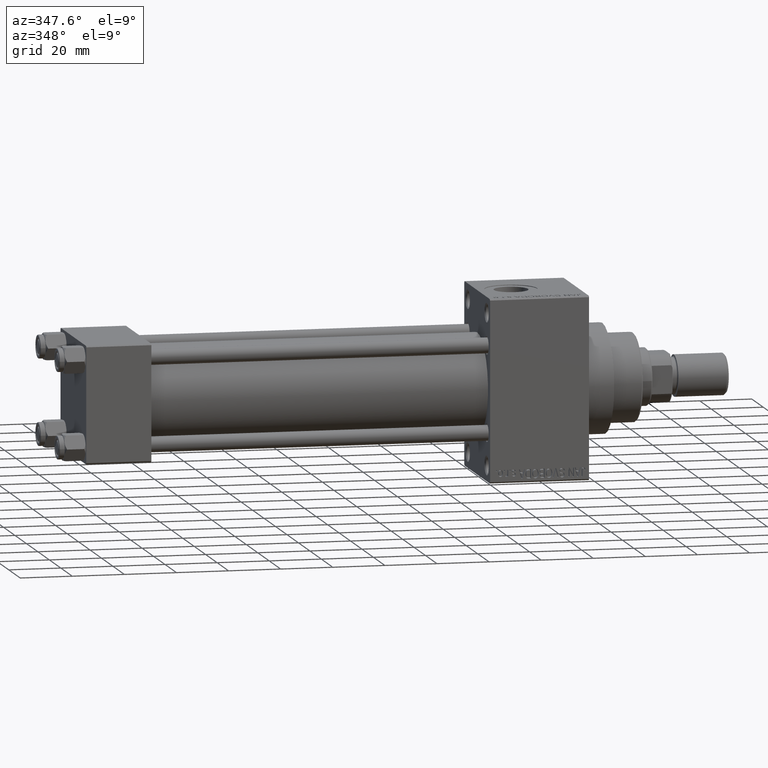
[diagram: clean part render]
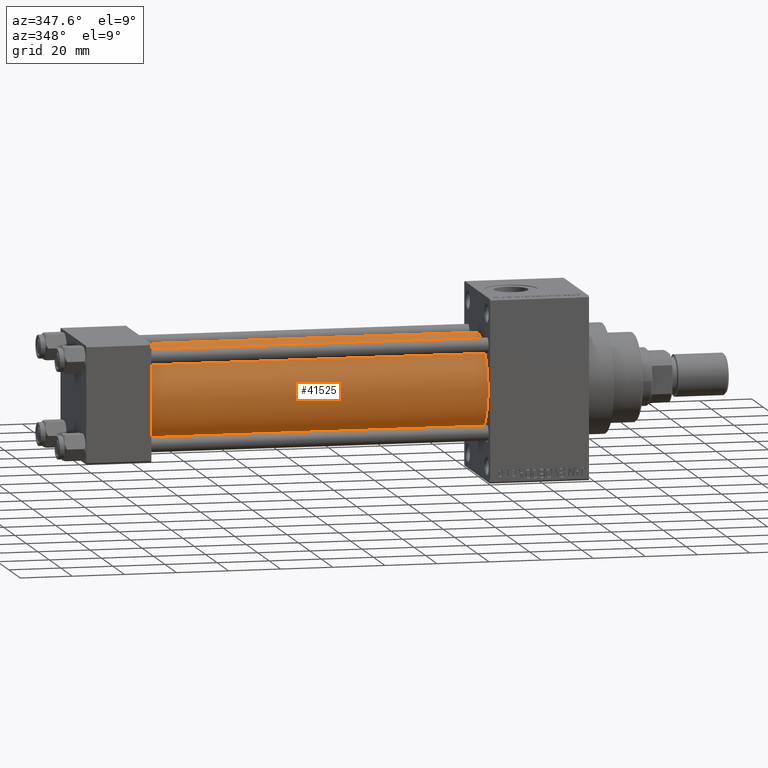
[diagram: same view with one face highlighted and labeled with its STEP entity id]
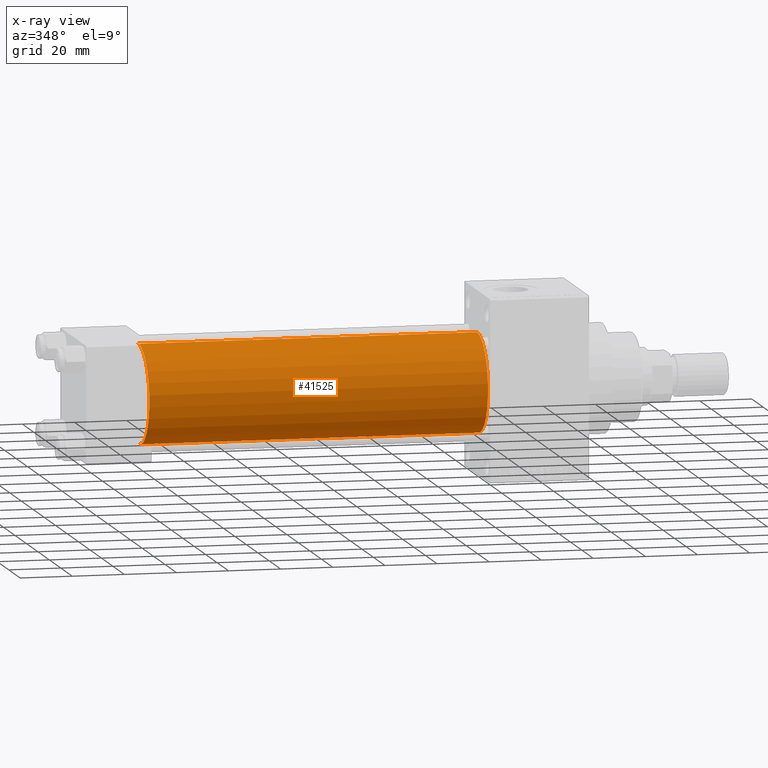
[diagram: x-ray of the same camera — body ghosted, the highlighted face saturated]
A machine part, auxiliary view. The second image highlights one B-rep face of the part: STEP entity #41525.
The next image is the same camera in x-ray: the body ghosted, the highlighted face saturated — about 0% of this face is hidden behind the body in this view.
In plain terms, the highlighted cylindrical surface (partial cylindrical patch) has radius 19 mm, axis along (-1, -0, -0).
Its self-contained STEP definition (entity closure, byte-faithful):
#107 = EDGE_CURVE ( 'NONE', #14056, #7375, #37675, .T. ) ;
#659 = AXIS2_PLACEMENT_3D ( 'NONE', #32966, #33209, #18994 ) ;
#2007 = CARTESIAN_POINT ( 'NONE',  ( 155.0000000000000000, -2.602085213965210642E-15, 0.000000000000000000 ) ) ;
#2282 = CARTESIAN_POINT ( 'NONE',  ( 24.99999999999999289, -2.752562955852396712E-16, -19.00000000000000000 ) ) ;
#2962 = ORIENTED_EDGE ( 'NONE', *, *, #46465, .T. ) ;
#2998 = DIRECTION ( 'NONE',  ( -1.000000000000000000, -0.000000000000000000, -0.000000000000000000 ) ) ;
#5917 = AXIS2_PLACEMENT_3D ( 'NONE', #39744, #31564, #42976 ) ;
#6208 = DIRECTION ( 'NONE',  ( 0.000000000000000000, 0.000000000000000000, -1.000000000000000000 ) ) ;
#7375 = VERTEX_POINT ( 'NONE', #20697 ) ;
#7678 = ORIENTED_EDGE ( 'NONE', *, *, #42769, .F. ) ;
#9184 = DIRECTION ( 'NONE',  ( 1.000000000000000000, 0.000000000000000000, 0.000000000000000000 ) ) ;
#10533 = VERTEX_POINT ( 'NONE', #32034 ) ;
#11881 = VECTOR ( 'NONE', #37478, 1000.000000000000000 ) ;
#13877 = CYLINDRICAL_SURFACE ( 'NONE', #659, 19.00000000000000000 ) ;
#14056 = VERTEX_POINT ( 'NONE', #36962 ) ;
#16914 = ORIENTED_EDGE ( 'NONE', *, *, #107, .F. ) ;
#18994 = DIRECTION ( 'NONE',  ( 0.000000000000000000, 0.000000000000000000, 1.000000000000000000 ) ) ;
#20697 = CARTESIAN_POINT ( 'NONE',  ( 155.0000000000000000, -2.752562955852396712E-16, -19.00000000000000000 ) ) ;
#22350 = CARTESIAN_POINT ( 'NONE',  ( 155.0000000000000000, -2.602085213965210642E-15, 19.00000000000000000 ) ) ;
#23713 = EDGE_LOOP ( 'NONE', ( #7678, #16914, #2962, #44736 ) ) ;
#24901 = EDGE_CURVE ( 'NONE', #10533, #39570, #35990, .T. ) ;
#29522 = LINE ( 'NONE', #36469, #48990 ) ;
#31564 = DIRECTION ( 'NONE',  ( 1.000000000000000000, -0.000000000000000000, 0.000000000000000000 ) ) ;
#32034 = CARTESIAN_POINT ( 'NONE',  ( 24.99999999999999289, -2.602085213965210642E-15, 19.00000000000000000 ) ) ;
#32723 = FACE_OUTER_BOUND ( 'NONE', #23713, .T. ) ;
#32966 = CARTESIAN_POINT ( 'NONE',  ( 155.0000000000000000, -2.602085213965210642E-15, 0.000000000000000000 ) ) ;
#33209 = DIRECTION ( 'NONE',  ( -1.000000000000000000, -0.000000000000000000, -0.000000000000000000 ) ) ;
#34523 = AXIS2_PLACEMENT_3D ( 'NONE', #2007, #9184, #6208 ) ;
#35990 = CIRCLE ( 'NONE', #5917, 19.00000000000000000 ) ;
#36469 = CARTESIAN_POINT ( 'NONE',  ( 155.0000000000000000, -2.752562955852396712E-16, -19.00000000000000000 ) ) ;
#36962 = CARTESIAN_POINT ( 'NONE',  ( 155.0000000000000000, -2.602085213965210642E-15, 19.00000000000000000 ) ) ;
#37478 = DIRECTION ( 'NONE',  ( -1.000000000000000000, -0.000000000000000000, -0.000000000000000000 ) ) ;
#37675 = CIRCLE ( 'NONE', #34523, 19.00000000000000000 ) ;
#39570 = VERTEX_POINT ( 'NONE', #2282 ) ;
#39744 = CARTESIAN_POINT ( 'NONE',  ( 24.99999999999999289, -2.602085213965210642E-15, 0.000000000000000000 ) ) ;
#41196 = LINE ( 'NONE', #22350, #11881 ) ;
#41525 = ADVANCED_FACE ( 'NONE', ( #32723 ), #13877, .T. ) ;
#42769 = EDGE_CURVE ( 'NONE', #7375, #39570, #29522, .T. ) ;
#42976 = DIRECTION ( 'NONE',  ( 0.000000000000000000, 0.000000000000000000, 1.000000000000000000 ) ) ;
#44736 = ORIENTED_EDGE ( 'NONE', *, *, #24901, .T. ) ;
#46465 = EDGE_CURVE ( 'NONE', #14056, #10533, #41196, .T. ) ;
#48990 = VECTOR ( 'NONE', #2998, 1000.000000000000000 ) ;